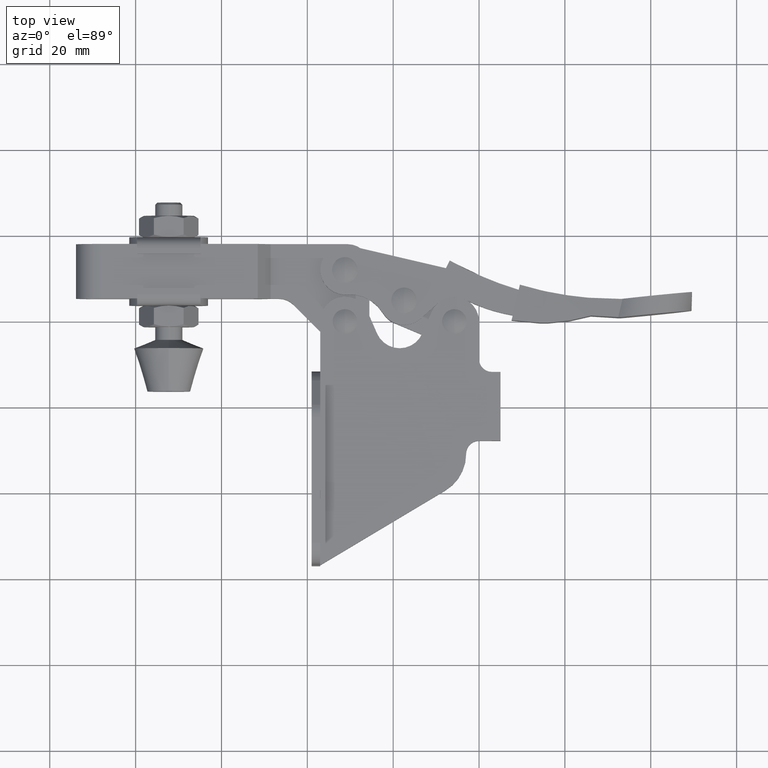
[diagram: clean part render]
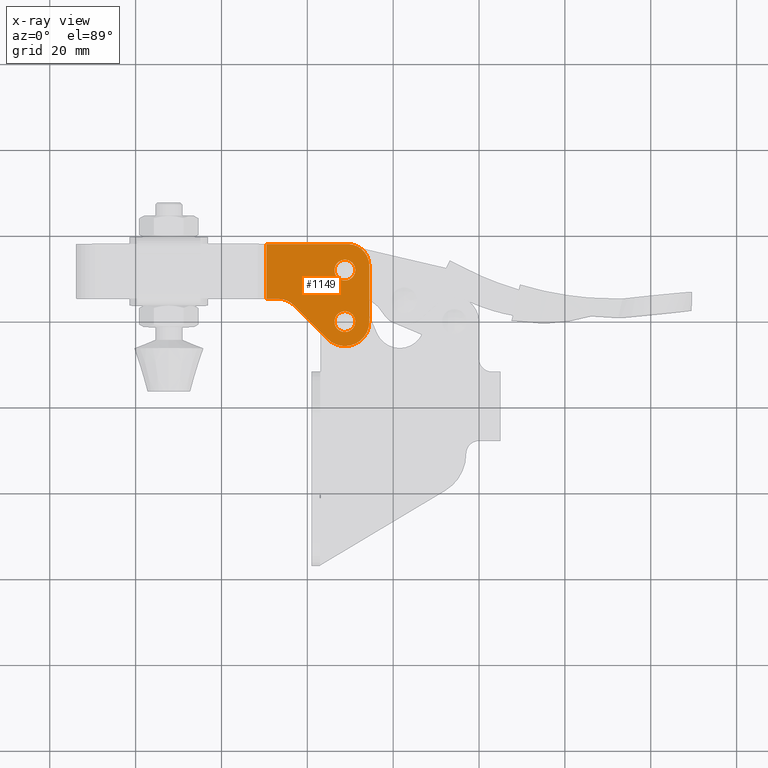
[diagram: x-ray — body ghosted, one internal face saturated and labeled with its STEP entity id]
A machine part, top view, then the same camera in x-ray: the body is ghosted and one INTERNAL B-rep face — a face not visible from any outside direction — is saturated and labeled: STEP entity #1149.
In plain terms, the highlighted planar face has unit normal (0, -0, 1).
Its self-contained STEP definition (entity closure, byte-faithful):
#201 = CARTESIAN_POINT ( 'NONE',  ( -93.91542650810583800, 25.08000000000017900, -1.999949999999548900 ) ) ;
#452 = AXIS2_PLACEMENT_3D ( 'NONE', #10353, #10163, #5401 ) ;
#470 = AXIS2_PLACEMENT_3D ( 'NONE', #5045, #5707, #8093 ) ;
#513 = CARTESIAN_POINT ( 'NONE',  ( -31.24999999999966600, 19.75000000000011000, -1.999949999999551100 ) ) ;
#682 = AXIS2_PLACEMENT_3D ( 'NONE', #4609, #1011, #8257 ) ;
#832 = CIRCLE ( 'NONE', #3019, 2.425000000000000300 ) ;
#845 = EDGE_CURVE ( 'NONE', #8874, #7212, #6281, .T. ) ;
#885 = VERTEX_POINT ( 'NONE', #1585 ) ;
#916 = VECTOR ( 'NONE', #8133, 1000.000000000000000 ) ;
#990 = VERTEX_POINT ( 'NONE', #5637 ) ;
#1011 = DIRECTION ( 'NONE',  ( -2.356930568284093500E-017, 1.201711089163625900E-016, -1.000000000000000000 ) ) ;
#1067 = CARTESIAN_POINT ( 'NONE',  ( -25.54999999999951800, 19.75000000000013900, -1.999949999999551100 ) ) ;
#1134 = CARTESIAN_POINT ( 'NONE',  ( -43.17655121145903500, 23.61553390593312700, -1.999949999999550300 ) ) ;
#1149 = ADVANCED_FACE ( 'NONE', ( #3991, #10711, #1871 ), #1907, .F. ) ;
#1241 = VECTOR ( 'NONE', #7073, 1000.000000000000000 ) ;
#1250 = CIRCLE ( 'NONE', #10368, 5.699999999999923800 ) ;
#1363 = EDGE_CURVE ( 'NONE', #885, #7265, #5459, .T. ) ;
#1585 = CARTESIAN_POINT ( 'NONE',  ( -35.28050865276310300, 15.71949134723701600, -1.999949999999551600 ) ) ;
#1871 = FACE_OUTER_BOUND ( 'NONE', #9747, .T. ) ;
#1907 = PLANE ( 'NONE',  #6727 ) ;
#1937 = CARTESIAN_POINT ( 'NONE',  ( -46.71208511739178000, 20.08000000000017200, -1.999949999999550700 ) ) ;
#1993 = CARTESIAN_POINT ( 'NONE',  ( -25.54999999999948200, 12.78000000000009700, -1.999949999999551800 ) ) ;
#2180 = DIRECTION ( 'NONE',  ( -4.704624276957724300E-015, 1.000000000000000000, 1.201711089163626900E-016 ) ) ;
#2206 = EDGE_CURVE ( 'NONE', #7212, #6775, #4141, .T. ) ;
#2342 = CARTESIAN_POINT ( 'NONE',  ( -46.71208511739180800, 25.08000000000025400, -1.999949999999549800 ) ) ;
#2597 = ORIENTED_EDGE ( 'NONE', *, *, #5743, .F. ) ;
#2655 = CARTESIAN_POINT ( 'NONE',  ( -28.82499999999966500, 19.75000000000011000, -1.999949999999551100 ) ) ;
#2828 = DIRECTION ( 'NONE',  ( 4.163336342344270000E-015, -1.000000000000000000, -8.673617379883895000E-017 ) ) ;
#3019 = AXIS2_PLACEMENT_3D ( 'NONE', #4285, #9848, #5099 ) ;
#3313 = DIRECTION ( 'NONE',  ( 4.704624276957724300E-015, -1.000000000000000000, -1.201711089163626900E-016 ) ) ;
#3341 = EDGE_CURVE ( 'NONE', #7690, #8874, #9524, .T. ) ;
#3480 = EDGE_CURVE ( 'NONE', #990, #885, #4566, .T. ) ;
#3695 = DIRECTION ( 'NONE',  ( -2.356930568284093500E-017, 1.201711089163625900E-016, -1.000000000000000000 ) ) ;
#3700 = CARTESIAN_POINT ( 'NONE',  ( -49.50323088947275400, 37.77999999999999400, -1.999949999999551600 ) ) ;
#3707 = EDGE_CURVE ( 'NONE', #7793, #7690, #9533, .T. ) ;
#3723 = CARTESIAN_POINT ( 'NONE',  ( -49.50323088947265400, 12.77999999999998500, -1.999949999999551100 ) ) ;
#3991 = FACE_BOUND ( 'NONE', #5931, .T. ) ;
#4141 = CIRCLE ( 'NONE', #470, 4.999999999999948500 ) ;
#4285 = CARTESIAN_POINT ( 'NONE',  ( -31.24999999999966600, 19.75000000000011000, -1.999949999999551100 ) ) ;
#4303 = ORIENTED_EDGE ( 'NONE', *, *, #2206, .T. ) ;
#4426 = CARTESIAN_POINT ( 'NONE',  ( -20.39647417840340200, 37.78000000000013600, -1.999949999999548900 ) ) ;
#4508 = ORIENTED_EDGE ( 'NONE', *, *, #7274, .F. ) ;
#4566 = CIRCLE ( 'NONE', #682, 5.699999999999923800 ) ;
#4609 = CARTESIAN_POINT ( 'NONE',  ( -31.24999999999966600, 19.75000000000011000, -1.999949999999551100 ) ) ;
#4701 = DIRECTION ( 'NONE',  ( -2.356930568284093500E-017, 1.201711089163625900E-016, -1.000000000000000000 ) ) ;
#4770 = ORIENTED_EDGE ( 'NONE', *, *, #8293, .F. ) ;
#4790 = CARTESIAN_POINT ( 'NONE',  ( -20.39647417840328800, 14.05000000000023500, -1.999949999999551800 ) ) ;
#4956 = AXIS2_PLACEMENT_3D ( 'NONE', #9465, #4701, #10274 ) ;
#5015 = CARTESIAN_POINT ( 'NONE',  ( -28.82499999999972200, 31.75000000000009600, -1.999949999999549400 ) ) ;
#5045 = CARTESIAN_POINT ( 'NONE',  ( -30.54999999999958500, 32.78000000000007200, -1.999949999999549400 ) ) ;
#5099 = DIRECTION ( 'NONE',  ( 4.292099322004470900E-015, -1.000000000000000000, -1.788374717501862800E-016 ) ) ;
#5265 = CIRCLE ( 'NONE', #4956, 2.425000000000000300 ) ;
#5304 = CARTESIAN_POINT ( 'NONE',  ( -33.67499999999972000, 31.75000000000009600, -1.999949999999549400 ) ) ;
#5401 = DIRECTION ( 'NONE',  ( 4.292099322004470900E-015, -1.000000000000000000, -1.788374717501862800E-016 ) ) ;
#5459 = LINE ( 'NONE', #7613, #7774 ) ;
#5519 = ORIENTED_EDGE ( 'NONE', *, *, #3707, .T. ) ;
#5637 = CARTESIAN_POINT ( 'NONE',  ( -31.24999999999963800, 14.05000000000018700, -1.999949999999551800 ) ) ;
#5682 = DIRECTION ( 'NONE',  ( -2.356930568284093500E-017, 1.201711089163625900E-016, -1.000000000000000000 ) ) ;
#5707 = DIRECTION ( 'NONE',  ( -2.356930568284093500E-017, 1.201711089163625900E-016, -1.000000000000000000 ) ) ;
#5743 = EDGE_CURVE ( 'NONE', #7668, #8102, #5894, .T. ) ;
#5784 = ORIENTED_EDGE ( 'NONE', *, *, #3341, .T. ) ;
#5834 = ORIENTED_EDGE ( 'NONE', *, *, #6757, .F. ) ;
#5894 = CIRCLE ( 'NONE', #452, 2.425000000000000300 ) ;
#5931 = EDGE_LOOP ( 'NONE', ( #5834, #4770 ) ) ;
#5934 = ORIENTED_EDGE ( 'NONE', *, *, #845, .T. ) ;
#6005 = VERTEX_POINT ( 'NONE', #5304 ) ;
#6041 = EDGE_LOOP ( 'NONE', ( #7435, #2597 ) ) ;
#6223 = CIRCLE ( 'NONE', #8588, 5.000000000000080800 ) ;
#6281 = LINE ( 'NONE', #4426, #916 ) ;
#6350 = ORIENTED_EDGE ( 'NONE', *, *, #1363, .T. ) ;
#6478 = DIRECTION ( 'NONE',  ( -0.7071067811865465700, 0.7071067811865484600, 1.016398218936627300E-016 ) ) ;
#6524 = CARTESIAN_POINT ( 'NONE',  ( -33.67499999999966300, 19.75000000000011000, -1.999949999999551100 ) ) ;
#6590 = EDGE_CURVE ( 'NONE', #10455, #990, #1250, .T. ) ;
#6686 = EDGE_CURVE ( 'NONE', #7265, #7793, #6223, .T. ) ;
#6727 = AXIS2_PLACEMENT_3D ( 'NONE', #4790, #8872, #3313 ) ;
#6757 = EDGE_CURVE ( 'NONE', #8953, #6005, #10142, .T. ) ;
#6775 = VERTEX_POINT ( 'NONE', #7733 ) ;
#6954 = ORIENTED_EDGE ( 'NONE', *, *, #6686, .T. ) ;
#7056 = EDGE_CURVE ( 'NONE', #8102, #7668, #832, .T. ) ;
#7073 = DIRECTION ( 'NONE',  ( -4.704624276957724300E-015, 1.000000000000000000, 1.201711089163626900E-016 ) ) ;
#7212 = VERTEX_POINT ( 'NONE', #8935 ) ;
#7265 = VERTEX_POINT ( 'NONE', #1134 ) ;
#7274 = EDGE_CURVE ( 'NONE', #10455, #6775, #9264, .T. ) ;
#7435 = ORIENTED_EDGE ( 'NONE', *, *, #7056, .F. ) ;
#7559 = AXIS2_PLACEMENT_3D ( 'NONE', #8521, #3695, #9307 ) ;
#7613 = CARTESIAN_POINT ( 'NONE',  ( -35.28050865276301800, 15.71949134723709600, -1.999949999999551600 ) ) ;
#7668 = VERTEX_POINT ( 'NONE', #6524 ) ;
#7690 = VERTEX_POINT ( 'NONE', #8077 ) ;
#7733 = CARTESIAN_POINT ( 'NONE',  ( -25.54999999999963100, 32.78000000000010100, -1.999949999999549400 ) ) ;
#7758 = DIRECTION ( 'NONE',  ( 2.356930568284093500E-017, -1.201711089163625900E-016, 1.000000000000000000 ) ) ;
#7774 = VECTOR ( 'NONE', #6478, 1000.000000000000100 ) ;
#7793 = VERTEX_POINT ( 'NONE', #2342 ) ;
#7937 = ORIENTED_EDGE ( 'NONE', *, *, #3480, .T. ) ;
#8077 = CARTESIAN_POINT ( 'NONE',  ( -49.50323088947271100, 25.08000000000017900, -1.999949999999548900 ) ) ;
#8093 = DIRECTION ( 'NONE',  ( 4.857225732735109600E-015, -1.000000000000000000, -8.673617379884125500E-017 ) ) ;
#8102 = VERTEX_POINT ( 'NONE', #2655 ) ;
#8133 = DIRECTION ( 'NONE',  ( 1.000000000000000000, 4.718502064765538800E-015, -2.356930568284035900E-017 ) ) ;
#8175 = ORIENTED_EDGE ( 'NONE', *, *, #6590, .T. ) ;
#8257 = DIRECTION ( 'NONE',  ( 4.869399230812155100E-015, -1.000000000000000000, -1.521687259628798500E-016 ) ) ;
#8293 = EDGE_CURVE ( 'NONE', #6005, #8953, #5265, .T. ) ;
#8521 = CARTESIAN_POINT ( 'NONE',  ( -31.24999999999972300, 31.75000000000009600, -1.999949999999549400 ) ) ;
#8588 = AXIS2_PLACEMENT_3D ( 'NONE', #1937, #7758, #2828 ) ;
#8872 = DIRECTION ( 'NONE',  ( 2.356930568284093800E-017, -1.201711089163625900E-016, 1.000000000000000000 ) ) ;
#8874 = VERTEX_POINT ( 'NONE', #3700 ) ;
#8935 = CARTESIAN_POINT ( 'NONE',  ( -30.54999999999960600, 37.78000000000003000, -1.999949499999548200 ) ) ;
#8953 = VERTEX_POINT ( 'NONE', #5015 ) ;
#9264 = LINE ( 'NONE', #1993, #1241 ) ;
#9307 = DIRECTION ( 'NONE',  ( 4.292099322004470900E-015, -1.000000000000000000, -1.788374717501862800E-016 ) ) ;
#9465 = CARTESIAN_POINT ( 'NONE',  ( -31.24999999999972300, 31.75000000000009600, -1.999949999999549400 ) ) ;
#9524 = LINE ( 'NONE', #3723, #9764 ) ;
#9533 = LINE ( 'NONE', #201, #10137 ) ;
#9747 = EDGE_LOOP ( 'NONE', ( #5784, #5934, #4303, #4508, #8175, #7937, #6350, #6954, #5519 ) ) ;
#9764 = VECTOR ( 'NONE', #2180, 1000.000000000000000 ) ;
#9824 = DIRECTION ( 'NONE',  ( -1.000000000000000000, -6.224333782242064800E-019, 2.356930568284092300E-017 ) ) ;
#9848 = DIRECTION ( 'NONE',  ( -2.356930568284093500E-017, 1.201711089163625900E-016, -1.000000000000000000 ) ) ;
#10137 = VECTOR ( 'NONE', #9824, 1000.000000000000000 ) ;
#10142 = CIRCLE ( 'NONE', #7559, 2.425000000000000300 ) ;
#10163 = DIRECTION ( 'NONE',  ( -2.356930568284093500E-017, 1.201711089163625900E-016, -1.000000000000000000 ) ) ;
#10274 = DIRECTION ( 'NONE',  ( 4.292099322004470900E-015, -1.000000000000000000, -1.788374717501862800E-016 ) ) ;
#10353 = CARTESIAN_POINT ( 'NONE',  ( -31.24999999999966600, 19.75000000000011000, -1.999949999999551100 ) ) ;
#10368 = AXIS2_PLACEMENT_3D ( 'NONE', #513, #5682, #10451 ) ;
#10451 = DIRECTION ( 'NONE',  ( 4.869399230812155100E-015, -1.000000000000000000, -1.521687259628798500E-016 ) ) ;
#10455 = VERTEX_POINT ( 'NONE', #1067 ) ;
#10711 = FACE_BOUND ( 'NONE', #6041, .T. ) ;